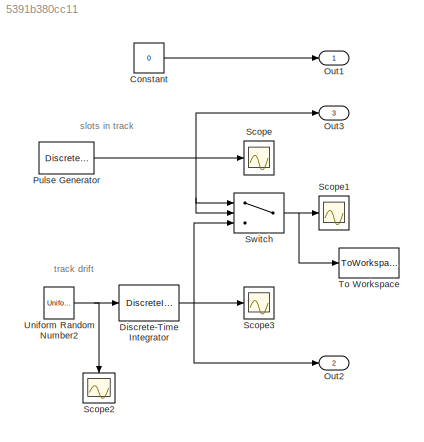
MODEL slx_5391b380cc11
KIND model
CONFIG AbsTol = auto
CONFIG EnableMultiTasking = off
CONFIG FixedStep = auto
CONFIG MaxStep = auto
CONFIG MinStep = auto
CONFIG RelTol = 1e-3
CONFIG SampleTimeConstraint = Unconstrained
CONFIG Solver = VariableStepAuto
CONFIG SolverName = VariableStepAuto
CONFIG StartTime = 0.0
CONFIG StopTime = 10
BLOCK [Constant] Constant
  Value = 0
BLOCK [DiscreteIntegrator] Discrete-Time Integrator
  ICPrevOutput = DiscIntNeverNeededParam
  ICPrevScaledInput = DiscIntNeverNeededParam
  InitialConditionSetting = State (most efficient)
  LimitOutput = on
  LowerSaturationLimit = -track_drift_max
  Ports = [1, 1]
  SampleTime = -1
  UpperSaturationLimit = track_drift_max
BLOCK [Outport] Out1
  IconDisplay = Port number
BLOCK [Outport] Out2
  IconDisplay = Port number
  Port = 2
BLOCK [Outport] Out3
  IconDisplay = Port number
  Port = 3
BLOCK [DiscretePulseGenerator] Pulse Generator
  Amplitude = slot_depth
  Period = period
  PhaseDelay = wth_pulse_phase_delay
  Ports = [0, 1]
  PulseType = Time based
  PulseWidth = wth_pulse_width
BLOCK [Scope] Scope
  NumInputPorts = 1
  Ports = [1]
  ScopeSpecificationString = Simulink.scopes.TimeScopeBlockCfg('CurrentConfiguration', extmgr.ConfigurationSet(extmgr.Configuration('Core','General UI',true),extmgr.Configuration('Core','Source UI',true),extmgr.Configuration('Sources','WiredSimulink',true),extmgr.Configuration('Visuals','Time Domain',true,'SerializedDisplays',{struct('MinYLimReal','-0.01429','MaxYLimReal','0.00159','YLabelReal','','MinYLimMag','0.00000','MaxY...<+1389ch>
BLOCK [Scope] Scope1
  NumInputPorts = 1
  Ports = [1]
  ScopeSpecificationString = Simulink.scopes.TimeScopeBlockCfg('CurrentConfiguration', extmgr.ConfigurationSet(extmgr.Configuration('Core','General UI',true),extmgr.Configuration('Core','Source UI',true),extmgr.Configuration('Sources','WiredSimulink',true,'DataLoggingVariableName','ScopeData1'),extmgr.Configuration('Visuals','Time Domain',true,'SerializedDisplays',{struct('MinYLimReal','-0.01433','MaxYLimReal','0.00198','YLab...<+1423ch>
BLOCK [Scope] Scope2
  NumInputPorts = 1
  Ports = [1]
  ScopeSpecificationString = Simulink.scopes.TimeScopeBlockCfg('CurrentConfiguration', extmgr.ConfigurationSet(extmgr.Configuration('Core','General UI',true),extmgr.Configuration('Core','Source UI',true),extmgr.Configuration('Sources','WiredSimulink',true,'DataLoggingVariableName','ScopeData1'),extmgr.Configuration('Visuals','Time Domain',true,'SerializedDisplays',{struct('MinYLimReal','-0.00125','MaxYLimReal','0.00125','YLab...<+1415ch>
BLOCK [Scope] Scope3
  NumInputPorts = 1
  Ports = [1]
  ScopeSpecificationString = Simulink.scopes.TimeScopeBlockCfg('CurrentConfiguration', extmgr.ConfigurationSet(extmgr.Configuration('Core','General UI',true),extmgr.Configuration('Core','Source UI',true),extmgr.Configuration('Sources','WiredSimulink',true,'DataLoggingVariableName','ScopeData3'),extmgr.Configuration('Visuals','Time Domain',true,'SerializedDisplays',{struct('MinYLimReal','-0.00055','MaxYLimReal','0.00045','YLab...<+1419ch>
BLOCK [Switch] Switch
  Criteria = u2 ~= 0
  InputSameDT = off
  SaturateOnIntegerOverflow = off
BLOCK [ToWorkspace] To Workspace
  FixptAsFi = on
  MaxDataPoints = inf
  Ports = [1]
  SampleTime = -1
  Save2DSignal = 3-D array (concatenate along third dimension)
  SaveFormat = Timeseries
  VariableName = simout
BLOCK [UniformRandomNumber] Uniform Random Number2
  Maximum = track_drift_incremental
  Minimum = -track_drift_incremental
  SampleTime = period
ANNOTATION (root): slots in track
ANNOTATION (root): track drift
LINE Constant:1 -> Out1:1
NET Discrete-Time Integrator:1 -> Out2:1, Scope3:1, Switch:3
NET Pulse Generator:1 -> Out3:1, Scope:1, Switch:1, Switch:2
NET Switch:1 -> Scope1:1, To Workspace:1
NET Uniform Random Number2:1 -> Discrete-Time Integrator:1, Scope2:1
note: NET lines group one-source signal fan-out (src -> all destinations, sorted); 1:1 wires keep LINE
